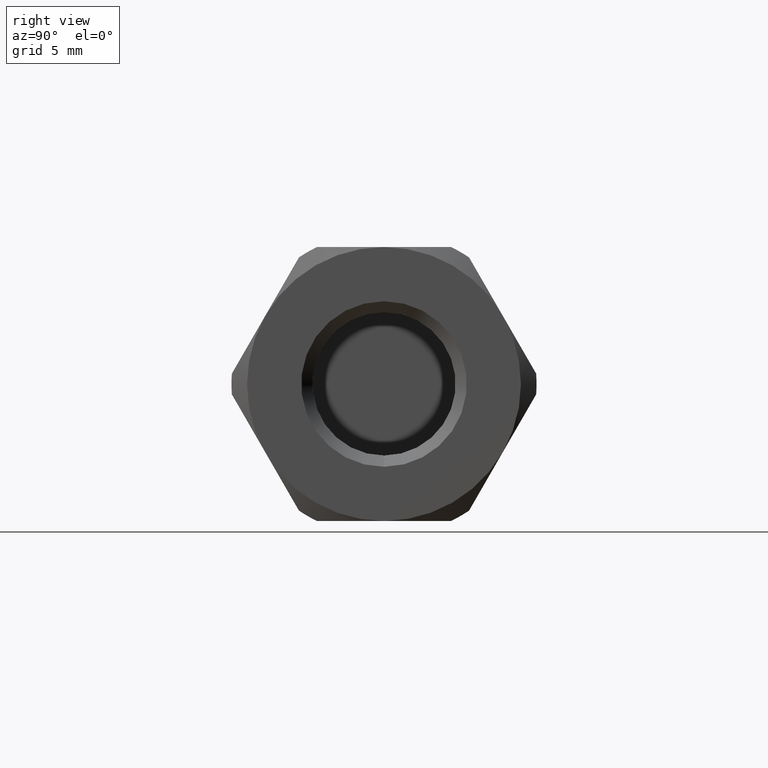
[diagram: clean part render]
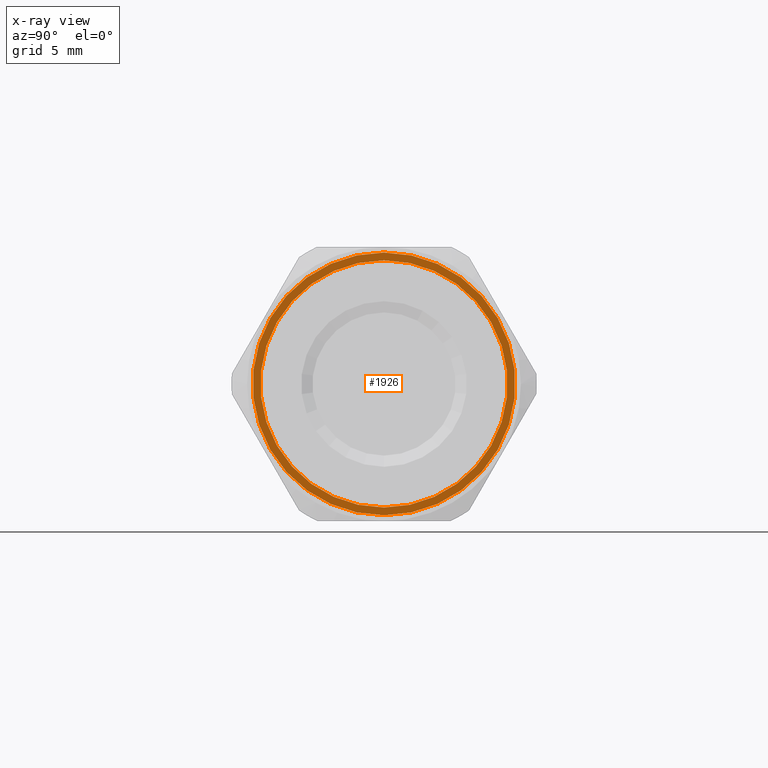
[diagram: x-ray — body ghosted, one internal face saturated and labeled with its STEP entity id]
A machine part, right view, then the same camera in x-ray: the body is ghosted and one INTERNAL B-rep face — a face not visible from any outside direction — is saturated and labeled: STEP entity #1926.
In plain terms, the highlighted planar face has unit normal (1, 0, -0).
Its self-contained STEP definition (entity closure, byte-faithful):
#98 = CARTESIAN_POINT ( 'NONE',  ( 20.54999999999999700, 0.0000000000000000000, 0.0000000000000000000 ) ) ;
#99 = DIRECTION ( 'NONE',  ( -1.000000000000000000, 0.0000000000000000000, 0.0000000000000000000 ) ) ;
#100 = DIRECTION ( 'NONE',  ( 0.0000000000000000000, 0.0000000000000000000, -1.000000000000000000 ) ) ;
#388 = CARTESIAN_POINT ( 'NONE',  ( 20.54999999999999700, 0.0000000000000000000, 0.0000000000000000000 ) ) ;
#389 = DIRECTION ( 'NONE',  ( -1.000000000000000000, 0.0000000000000000000, 0.0000000000000000000 ) ) ;
#390 = DIRECTION ( 'NONE',  ( 0.0000000000000000000, 0.0000000000000000000, -1.000000000000000000 ) ) ;
#412 = CARTESIAN_POINT ( 'NONE',  ( 20.54999999999999700, 0.0000000000000000000, 0.0000000000000000000 ) ) ;
#413 = DIRECTION ( 'NONE',  ( 1.000000000000000000, -0.0000000000000000000, -0.0000000000000000000 ) ) ;
#414 = DIRECTION ( 'NONE',  ( 0.0000000000000000000, 0.0000000000000000000, -1.000000000000000000 ) ) ;
#439 = CARTESIAN_POINT ( 'NONE',  ( 20.54999999999999700, 1.215967041649462300E-015, -9.929124401387126000 ) ) ;
#450 = CARTESIAN_POINT ( 'NONE',  ( 20.54999999999999700, 0.0000000000000000000, 9.929124401387126000 ) ) ;
#616 = PLANE ( 'NONE',  #884 ) ;
#617 = CARTESIAN_POINT ( 'NONE',  ( 20.54999999999999700, 9.399999999999995000, 0.0000000000000000000 ) ) ;
#618 = DIRECTION ( 'NONE',  ( 1.000000000000000000, 0.0000000000000000000, -0.0000000000000000000 ) ) ;
#619 = DIRECTION ( 'NONE',  ( -0.0000000000000000000, 0.0000000000000000000, -1.000000000000000000 ) ) ;
#757 = CARTESIAN_POINT ( 'NONE',  ( 20.54999999999999700, 0.0000000000000000000, -10.54999999999999900 ) ) ;
#758 = CARTESIAN_POINT ( 'NONE',  ( 20.54999999999999700, 1.292002373100457500E-015, 10.54999999999999900 ) ) ;
#801 = DIRECTION ( 'NONE',  ( 0.0000000000000000000, 0.0000000000000000000, -1.000000000000000000 ) ) ;
#802 = DIRECTION ( 'NONE',  ( 1.000000000000000000, -0.0000000000000000000, -0.0000000000000000000 ) ) ;
#828 = AXIS2_PLACEMENT_3D ( 'NONE', #388, #389, #390 ) ;
#836 = AXIS2_PLACEMENT_3D ( 'NONE', #412, #413, #414 ) ;
#884 = AXIS2_PLACEMENT_3D ( 'NONE', #617, #618, #619 ) ;
#1162 = EDGE_LOOP ( 'NONE', ( #2053, #2125 ) ) ;
#1164 = EDGE_LOOP ( 'NONE', ( #2042, #2038 ) ) ;
#1246 = CIRCLE ( 'NONE', #1738, 10.54999999999999900 ) ;
#1293 = CIRCLE ( 'NONE', #1761, 9.929124401387126000 ) ;
#1358 = CIRCLE ( 'NONE', #828, 9.929124401387126000 ) ;
#1366 = CIRCLE ( 'NONE', #836, 10.54999999999999900 ) ;
#1452 = FACE_OUTER_BOUND ( 'NONE', #1164, .T. ) ;
#1453 = FACE_BOUND ( 'NONE', #1162, .T. ) ;
#1587 = EDGE_CURVE ( 'NONE', #2181, #2182, #1246, .T. ) ;
#1622 = EDGE_CURVE ( 'NONE', #1796, #1784, #1293, .T. ) ;
#1695 = EDGE_CURVE ( 'NONE', #1784, #1796, #1358, .T. ) ;
#1703 = EDGE_CURVE ( 'NONE', #2182, #2181, #1366, .T. ) ;
#1738 = AXIS2_PLACEMENT_3D ( 'NONE', #2135, #802, #801 ) ;
#1761 = AXIS2_PLACEMENT_3D ( 'NONE', #98, #99, #100 ) ;
#1784 = VERTEX_POINT ( 'NONE', #439 ) ;
#1796 = VERTEX_POINT ( 'NONE', #450 ) ;
#1926 = ADVANCED_FACE ( 'NONE', ( #1452, #1453 ), #616, .T. ) ;
#2038 = ORIENTED_EDGE ( 'NONE', *, *, #1703, .T. ) ;
#2042 = ORIENTED_EDGE ( 'NONE', *, *, #1587, .T. ) ;
#2053 = ORIENTED_EDGE ( 'NONE', *, *, #1622, .T. ) ;
#2125 = ORIENTED_EDGE ( 'NONE', *, *, #1695, .T. ) ;
#2135 = CARTESIAN_POINT ( 'NONE',  ( 20.54999999999999700, 0.0000000000000000000, 0.0000000000000000000 ) ) ;
#2181 = VERTEX_POINT ( 'NONE', #757 ) ;
#2182 = VERTEX_POINT ( 'NONE', #758 ) ;